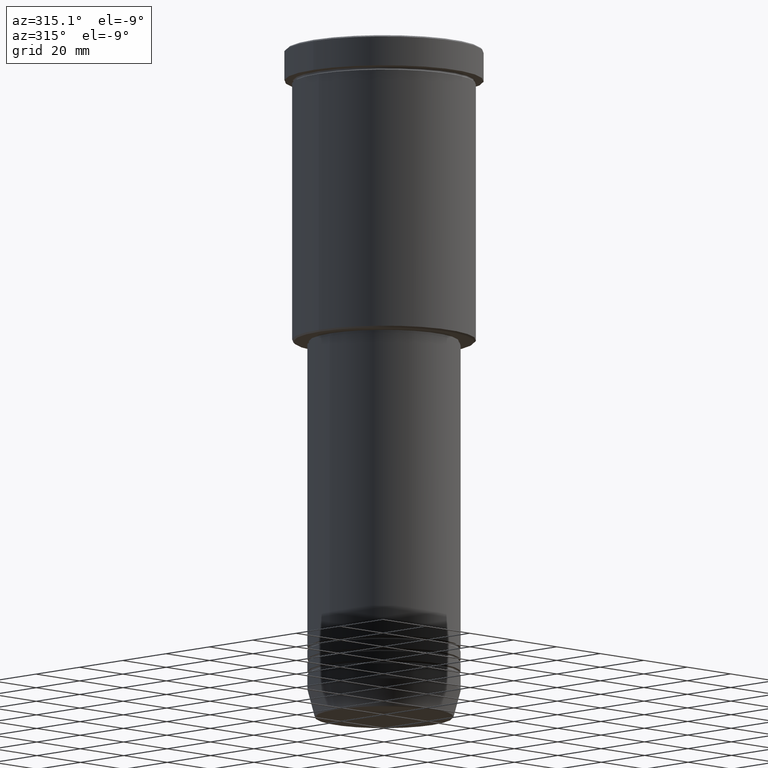
[diagram: clean part render]
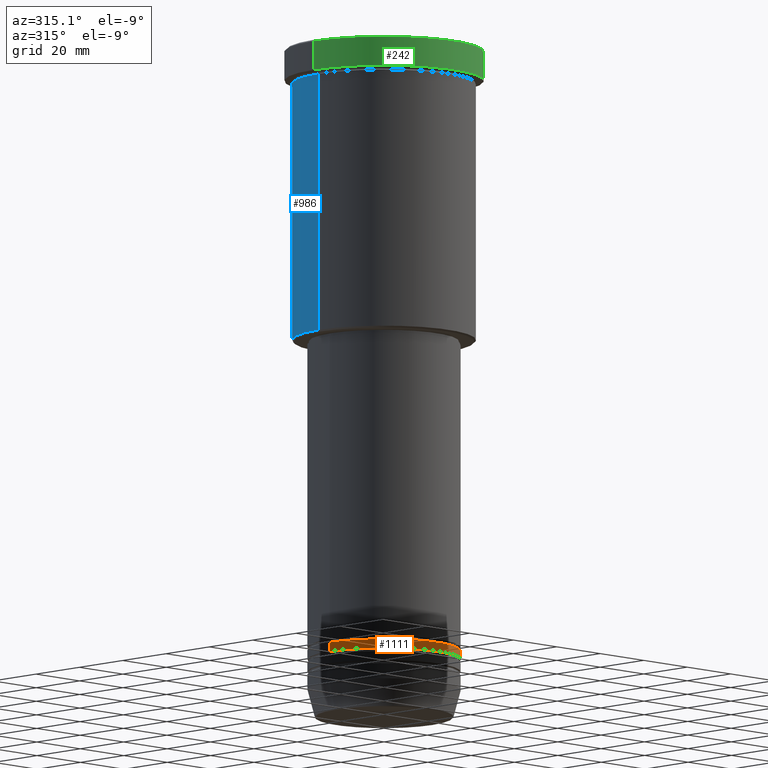
[diagram: same view with three faces highlighted in distinct colors, each labeled with its STEP entity id]
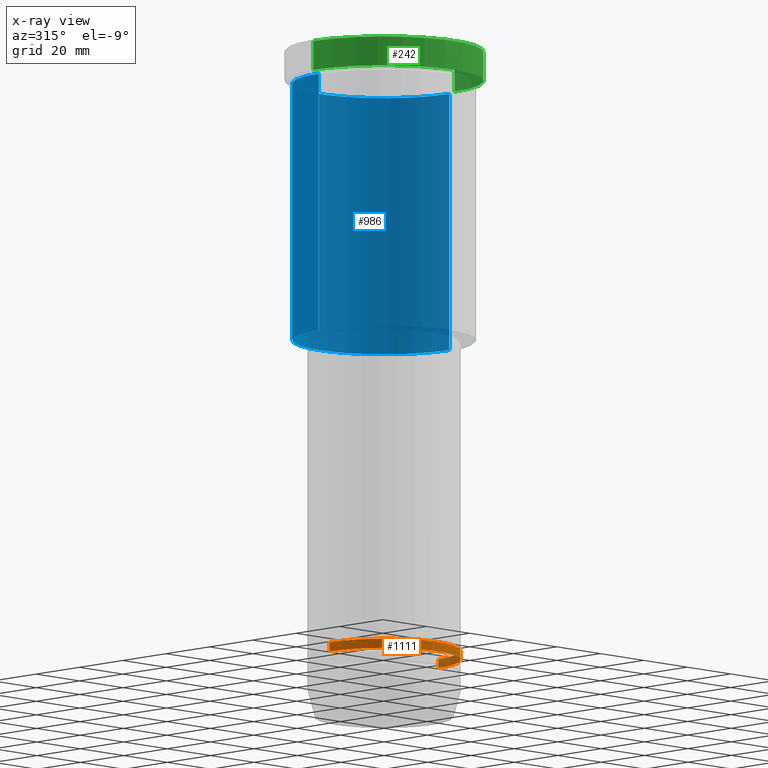
[diagram: x-ray of the same camera — body ghosted, the three highlighted faces saturated]
A machine part, auxiliary view with three faces highlighted in distinct colors.
The next image is the same camera in x-ray (body ghosted, the three faces saturated) — at least one of them is partly hidden behind the body in this view.
Their STEP definitions:

[orange] entity #1111 — the highlighted cylindrical surface (partial cylindrical patch) has radius 25 mm, axis along (-0, -0, 1).
#78 = DIRECTION ( 'NONE',  ( -0.000000000000000000, -0.000000000000000000, 1.000000000000000000 ) ) ;
#90 = DIRECTION ( 'NONE',  ( -0.000000000000000000, -0.000000000000000000, 1.000000000000000000 ) ) ;
#186 = CARTESIAN_POINT ( 'NONE',  ( -25.00000000000000000, 3.061616997868383043E-15, -197.9999999999999716 ) ) ;
#191 = CARTESIAN_POINT ( 'NONE',  ( -25.00000000000000000, 3.061616997868383043E-15, 0.000000000000000000 ) ) ;
#196 = FACE_OUTER_BOUND ( 'NONE', #896, .T. ) ;
#227 = ORIENTED_EDGE ( 'NONE', *, *, #944, .F. ) ;
#256 = CIRCLE ( 'NONE', #505, 25.00000000000000000 ) ;
#259 = AXIS2_PLACEMENT_3D ( 'NONE', #1117, #768, #658 ) ;
#262 = CARTESIAN_POINT ( 'NONE',  ( 25.00000000000000355, 0.000000000000000000, -200.9999999999999716 ) ) ;
#274 = CARTESIAN_POINT ( 'NONE',  ( -25.00000000000000711, 3.061616997868383831E-15, -200.9999999999999716 ) ) ;
#293 = VERTEX_POINT ( 'NONE', #274 ) ;
#328 = CARTESIAN_POINT ( 'NONE',  ( 0.000000000000000000, 0.000000000000000000, -197.9999999999999716 ) ) ;
#332 = VECTOR ( 'NONE', #90, 1000.000000000000000 ) ;
#354 = DIRECTION ( 'NONE',  ( -0.000000000000000000, -0.000000000000000000, 1.000000000000000000 ) ) ;
#386 = VERTEX_POINT ( 'NONE', #508 ) ;
#424 = DIRECTION ( 'NONE',  ( -0.000000000000000000, -0.000000000000000000, 1.000000000000000000 ) ) ;
#440 = DIRECTION ( 'NONE',  ( 1.000000000000000000, 0.000000000000000000, 0.000000000000000000 ) ) ;
#505 = AXIS2_PLACEMENT_3D ( 'NONE', #328, #424, #511 ) ;
#508 = CARTESIAN_POINT ( 'NONE',  ( 25.00000000000000000, 0.000000000000000000, -197.9999999999999716 ) ) ;
#511 = DIRECTION ( 'NONE',  ( 1.000000000000000000, 0.000000000000000000, 0.000000000000000000 ) ) ;
#535 = CYLINDRICAL_SURFACE ( 'NONE', #765, 25.00000000000000000 ) ;
#563 = VECTOR ( 'NONE', #354, 1000.000000000000000 ) ;
#578 = VERTEX_POINT ( 'NONE', #262 ) ;
#590 = EDGE_CURVE ( 'NONE', #293, #674, #647, .T. ) ;
#647 = LINE ( 'NONE', #191, #563 ) ;
#658 = DIRECTION ( 'NONE',  ( 1.000000000000000000, 0.000000000000000000, 0.000000000000000000 ) ) ;
#674 = VERTEX_POINT ( 'NONE', #186 ) ;
#742 = ORIENTED_EDGE ( 'NONE', *, *, #1045, .T. ) ;
#765 = AXIS2_PLACEMENT_3D ( 'NONE', #912, #78, #440 ) ;
#768 = DIRECTION ( 'NONE',  ( -0.000000000000000000, -0.000000000000000000, 1.000000000000000000 ) ) ;
#809 = ORIENTED_EDGE ( 'NONE', *, *, #1177, .T. ) ;
#840 = LINE ( 'NONE', #1171, #332 ) ;
#896 = EDGE_LOOP ( 'NONE', ( #1080, #809, #742, #227 ) ) ;
#912 = CARTESIAN_POINT ( 'NONE',  ( 0.000000000000000000, 0.000000000000000000, 0.000000000000000000 ) ) ;
#944 = EDGE_CURVE ( 'NONE', #674, #386, #256, .T. ) ;
#1045 = EDGE_CURVE ( 'NONE', #578, #386, #840, .T. ) ;
#1080 = ORIENTED_EDGE ( 'NONE', *, *, #590, .F. ) ;
#1111 = ADVANCED_FACE ( 'NONE', ( #196 ), #535, .T. ) ;
#1117 = CARTESIAN_POINT ( 'NONE',  ( 0.000000000000000000, 0.000000000000000000, -200.9999999999999716 ) ) ;
#1171 = CARTESIAN_POINT ( 'NONE',  ( 25.00000000000000000, 0.000000000000000000, 0.000000000000000000 ) ) ;
#1176 = CIRCLE ( 'NONE', #259, 25.00000000000000355 ) ;
#1177 = EDGE_CURVE ( 'NONE', #293, #578, #1176, .T. ) ;

[blue] entity #986 — the highlighted cylindrical surface (partial cylindrical patch) has radius 30 mm, axis along (-0, -0, 1).
#20 = CARTESIAN_POINT ( 'NONE',  ( -30.00000000000000000, 3.673940397442059178E-15, -95.50000000000002842 ) ) ;
#38 = CARTESIAN_POINT ( 'NONE',  ( -30.00000000000000000, 3.673940397442059178E-15, -10.99999999999999289 ) ) ;
#52 = CARTESIAN_POINT ( 'NONE',  ( 0.000000000000000000, 0.000000000000000000, 0.000000000000000000 ) ) ;
#63 = LINE ( 'NONE', #1012, #760 ) ;
#65 = DIRECTION ( 'NONE',  ( -1.000000000000000000, 0.000000000000000000, 0.000000000000000000 ) ) ;
#74 = DIRECTION ( 'NONE',  ( 1.000000000000000000, 0.000000000000000000, 0.000000000000000000 ) ) ;
#76 = EDGE_CURVE ( 'NONE', #162, #805, #63, .T. ) ;
#82 = VECTOR ( 'NONE', #419, 1000.000000000000000 ) ;
#113 = ORIENTED_EDGE ( 'NONE', *, *, #489, .F. ) ;
#138 = AXIS2_PLACEMENT_3D ( 'NONE', #697, #605, #65 ) ;
#149 = ORIENTED_EDGE ( 'NONE', *, *, #402, .F. ) ;
#162 = VERTEX_POINT ( 'NONE', #20 ) ;
#192 = ORIENTED_EDGE ( 'NONE', *, *, #548, .T. ) ;
#318 = DIRECTION ( 'NONE',  ( 1.000000000000000000, 0.000000000000000000, 0.000000000000000000 ) ) ;
#320 = VERTEX_POINT ( 'NONE', #451 ) ;
#343 = ORIENTED_EDGE ( 'NONE', *, *, #76, .T. ) ;
#348 = CIRCLE ( 'NONE', #799, 30.00000000000000000 ) ;
#363 = DIRECTION ( 'NONE',  ( -0.000000000000000000, -0.000000000000000000, 1.000000000000000000 ) ) ;
#402 = EDGE_CURVE ( 'NONE', #512, #320, #710, .T. ) ;
#407 = CYLINDRICAL_SURFACE ( 'NONE', #959, 30.00000000000000000 ) ;
#419 = DIRECTION ( 'NONE',  ( -0.000000000000000000, -0.000000000000000000, 1.000000000000000000 ) ) ;
#451 = CARTESIAN_POINT ( 'NONE',  ( 30.00000000000000000, 0.000000000000000000, -10.99999999999999289 ) ) ;
#489 = EDGE_CURVE ( 'NONE', #320, #805, #348, .T. ) ;
#512 = VERTEX_POINT ( 'NONE', #1153 ) ;
#528 = CARTESIAN_POINT ( 'NONE',  ( 0.000000000000000000, 0.000000000000000000, -10.99999999999999289 ) ) ;
#548 = EDGE_CURVE ( 'NONE', #512, #162, #762, .T. ) ;
#605 = DIRECTION ( 'NONE',  ( -0.000000000000000000, -0.000000000000000000, 1.000000000000000000 ) ) ;
#648 = EDGE_LOOP ( 'NONE', ( #192, #343, #113, #149 ) ) ;
#697 = CARTESIAN_POINT ( 'NONE',  ( 0.000000000000000000, 0.000000000000000000, -95.50000000000002842 ) ) ;
#710 = LINE ( 'NONE', #807, #82 ) ;
#760 = VECTOR ( 'NONE', #363, 1000.000000000000000 ) ;
#762 = CIRCLE ( 'NONE', #138, 30.00000000000000000 ) ;
#799 = AXIS2_PLACEMENT_3D ( 'NONE', #528, #1075, #74 ) ;
#805 = VERTEX_POINT ( 'NONE', #38 ) ;
#807 = CARTESIAN_POINT ( 'NONE',  ( 30.00000000000000000, 0.000000000000000000, 0.000000000000000000 ) ) ;
#907 = FACE_OUTER_BOUND ( 'NONE', #648, .T. ) ;
#959 = AXIS2_PLACEMENT_3D ( 'NONE', #52, #1147, #318 ) ;
#986 = ADVANCED_FACE ( 'NONE', ( #907 ), #407, .T. ) ;
#1012 = CARTESIAN_POINT ( 'NONE',  ( -30.00000000000000000, 3.673940397442059178E-15, 0.000000000000000000 ) ) ;
#1075 = DIRECTION ( 'NONE',  ( -0.000000000000000000, -0.000000000000000000, 1.000000000000000000 ) ) ;
#1147 = DIRECTION ( 'NONE',  ( -0.000000000000000000, -0.000000000000000000, 1.000000000000000000 ) ) ;
#1153 = CARTESIAN_POINT ( 'NONE',  ( 30.00000000000000000, 0.000000000000000000, -95.50000000000002842 ) ) ;

[green] entity #242 — the highlighted cylindrical surface (partial cylindrical patch) has radius 32.5 mm, axis along (-0, -0, 1).
#3 = CARTESIAN_POINT ( 'NONE',  ( 32.50000000000000000, 0.000000000000000000, -0.4999999999999448219 ) ) ;
#12 = AXIS2_PLACEMENT_3D ( 'NONE', #13, #1089, #738 ) ;
#13 = CARTESIAN_POINT ( 'NONE',  ( 0.000000000000000000, 0.000000000000000000, -9.999999999999992895 ) ) ;
#16 = ORIENTED_EDGE ( 'NONE', *, *, #253, .T. ) ;
#22 = ORIENTED_EDGE ( 'NONE', *, *, #774, .F. ) ;
#27 = CARTESIAN_POINT ( 'NONE',  ( 0.000000000000000000, 0.000000000000000000, 0.000000000000000000 ) ) ;
#31 = CIRCLE ( 'NONE', #12, 32.50000000000000000 ) ;
#40 = CARTESIAN_POINT ( 'NONE',  ( 32.50000000000000000, 0.000000000000000000, 0.000000000000000000 ) ) ;
#108 = ORIENTED_EDGE ( 'NONE', *, *, #1067, .T. ) ;
#125 = CARTESIAN_POINT ( 'NONE',  ( 0.000000000000000000, 0.000000000000000000, -0.4999999999999448219 ) ) ;
#177 = CARTESIAN_POINT ( 'NONE',  ( -32.50000000000000000, 3.980102097228898626E-15, -9.999999999999992895 ) ) ;
#209 = DIRECTION ( 'NONE',  ( 1.000000000000000000, 0.000000000000000000, 0.000000000000000000 ) ) ;
#242 = ADVANCED_FACE ( 'NONE', ( #1122 ), #671, .T. ) ;
#253 = EDGE_CURVE ( 'NONE', #272, #325, #951, .T. ) ;
#272 = VERTEX_POINT ( 'NONE', #478 ) ;
#298 = DIRECTION ( 'NONE',  ( 0.000000000000000000, 0.000000000000000000, -1.000000000000000000 ) ) ;
#308 = VECTOR ( 'NONE', #398, 1000.000000000000000 ) ;
#325 = VERTEX_POINT ( 'NONE', #3 ) ;
#398 = DIRECTION ( 'NONE',  ( -0.000000000000000000, -0.000000000000000000, 1.000000000000000000 ) ) ;
#478 = CARTESIAN_POINT ( 'NONE',  ( 32.50000000000000000, 0.000000000000000000, -9.999999999999992895 ) ) ;
#480 = DIRECTION ( 'NONE',  ( -0.000000000000000000, -0.000000000000000000, 1.000000000000000000 ) ) ;
#492 = DIRECTION ( 'NONE',  ( -0.000000000000000000, -0.000000000000000000, 1.000000000000000000 ) ) ;
#572 = VERTEX_POINT ( 'NONE', #749 ) ;
#580 = VERTEX_POINT ( 'NONE', #177 ) ;
#591 = DIRECTION ( 'NONE',  ( 1.000000000000000000, 0.000000000000000000, 0.000000000000000000 ) ) ;
#671 = CYLINDRICAL_SURFACE ( 'NONE', #798, 32.50000000000000000 ) ;
#725 = EDGE_CURVE ( 'NONE', #325, #572, #920, .T. ) ;
#738 = DIRECTION ( 'NONE',  ( 1.000000000000000000, 0.000000000000000000, 0.000000000000000000 ) ) ;
#740 = VECTOR ( 'NONE', #480, 1000.000000000000000 ) ;
#749 = CARTESIAN_POINT ( 'NONE',  ( -32.50000000000000000, 3.980102097228898626E-15, -0.4999999999999448219 ) ) ;
#774 = EDGE_CURVE ( 'NONE', #580, #572, #1039, .T. ) ;
#792 = EDGE_LOOP ( 'NONE', ( #22, #108, #16, #1126 ) ) ;
#798 = AXIS2_PLACEMENT_3D ( 'NONE', #27, #492, #209 ) ;
#920 = CIRCLE ( 'NONE', #1161, 32.50000000000000000 ) ;
#951 = LINE ( 'NONE', #40, #308 ) ;
#1039 = LINE ( 'NONE', #1129, #740 ) ;
#1067 = EDGE_CURVE ( 'NONE', #580, #272, #31, .T. ) ;
#1089 = DIRECTION ( 'NONE',  ( -0.000000000000000000, -0.000000000000000000, 1.000000000000000000 ) ) ;
#1122 = FACE_OUTER_BOUND ( 'NONE', #792, .T. ) ;
#1126 = ORIENTED_EDGE ( 'NONE', *, *, #725, .T. ) ;
#1129 = CARTESIAN_POINT ( 'NONE',  ( -32.50000000000000000, 3.980102097228898626E-15, 0.000000000000000000 ) ) ;
#1161 = AXIS2_PLACEMENT_3D ( 'NONE', #125, #298, #591 ) ;